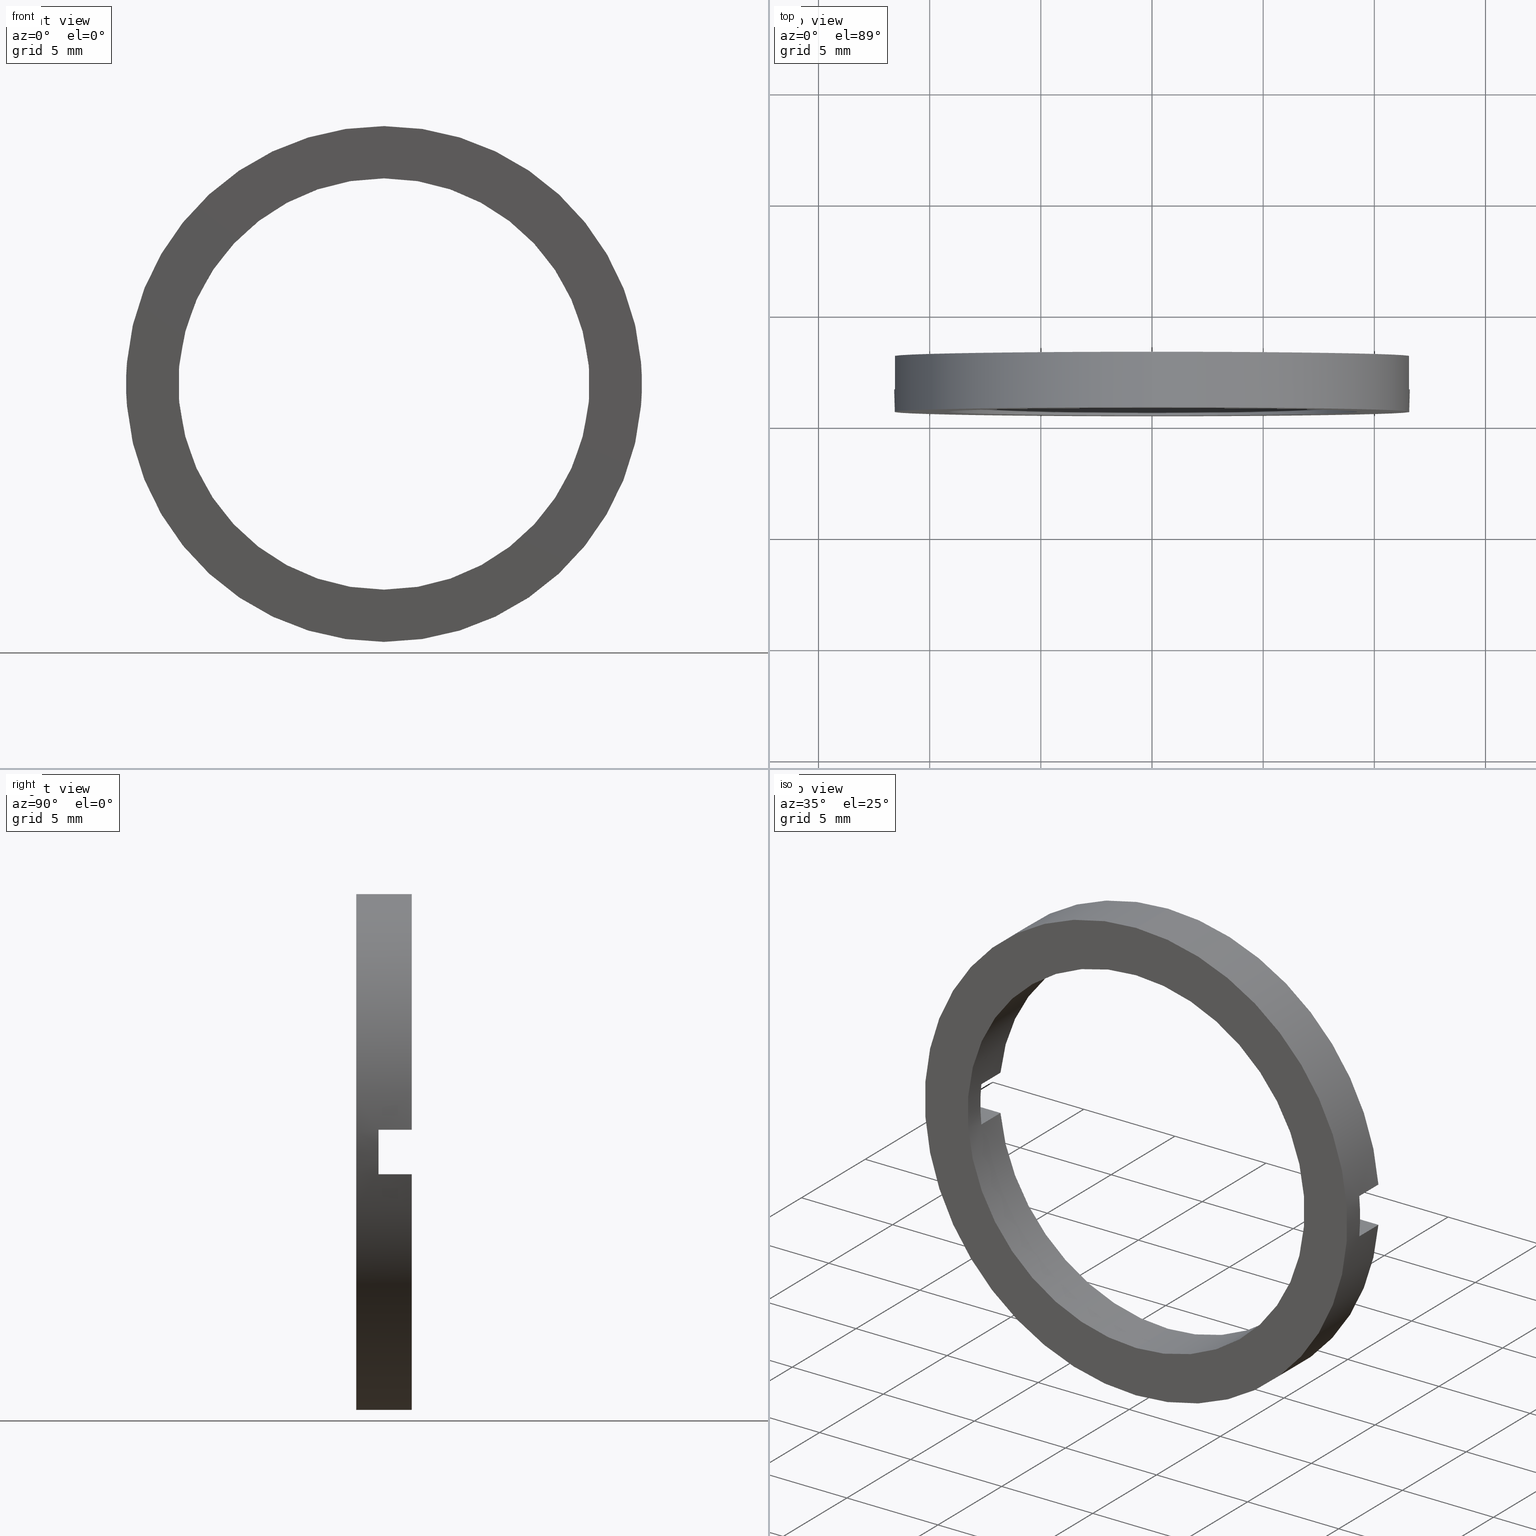
[diagram: canonical four-view strip — front | top / right | iso, engineering-drawing reading convention]
A machine part, canonical four-view strip (front | top / right | iso — engineering-drawing reading convention). The complete STEP part file that produces these views, byte-faithful:
ISO-10303-21;
HEADER;
FILE_DESCRIPTION (( 'STEP AP203' ),
    '1' );
FILE_NAME ('514010.STEP',
    '2019-09-25T08:48:17',
    ( '' ),
    ( '' ),
    'SwSTEP 2.0',
    'SolidWorks 2016',
    '' );
FILE_SCHEMA (( 'CONFIG_CONTROL_DESIGN' ));
ENDSEC;

DATA;
#1 = PERSON_AND_ORGANIZATION ( #562, #462 ) ;
#2 = DIRECTION ( 'NONE',  ( 0.0000000000000000000, 0.0000000000000000000, 1.000000000000000000 ) ) ;
#3 = APPROVAL ( #132, 'δָ��' ) ;
#4 = CC_DESIGN_PERSON_AND_ORGANIZATION_ASSIGNMENT ( #27, #531, ( #470 ) ) ;
#5 = ORIENTED_EDGE ( 'NONE', *, *, #64, .F. ) ;
#6 = CIRCLE ( 'NONE', #53, 11.60000000000000700 ) ;
#7 =( LENGTH_UNIT ( ) NAMED_UNIT ( * ) SI_UNIT ( .MILLI., .METRE. ) );
#8 = LOCAL_TIME ( 16, 48, 17.00000000000000000, #135 ) ;
#9 = ORIENTED_EDGE ( 'NONE', *, *, #452, .T. ) ;
#10 = VERTEX_POINT ( 'NONE', #241 ) ;
#11 = EDGE_CURVE ( 'NONE', #349, #76, #174, .T. ) ;
#12 = PRODUCT_DEFINITION ( 'δ֪', '', #269, #340 ) ;
#13 = CC_DESIGN_APPROVAL ( #551, ( #212 ) ) ;
#14 = CARTESIAN_POINT ( 'NONE',  ( -26.85254027261461800, -1.964249787179430900, -1.000000000000000000 ) ) ;
#15 = ORIENTED_EDGE ( 'NONE', *, *, #208, .F. ) ;
#16 = FACE_OUTER_BOUND ( 'NONE', #116, .T. ) ;
#17 = AXIS2_PLACEMENT_3D ( 'NONE', #125, #360, #390 ) ;
#18 = CALENDAR_DATE ( 2019, 25, 9 ) ;
#19 = PRODUCT ( '514010', '514010', '', ( #291 ) ) ;
#20 = ORIENTED_EDGE ( 'NONE', *, *, #467, .T. ) ;
#21 = ADVANCED_FACE ( 'NONE', ( #543 ), #325, .T. ) ;
#22 = DIRECTION ( 'NONE',  ( -0.0000000000000000000, -1.000000000000000000, -0.0000000000000000000 ) ) ;
#23 = CC_DESIGN_APPROVAL ( #395, ( #322 ) ) ;
#24 = DIRECTION ( 'NONE',  ( 1.000000000000000000, 0.0000000000000000000, 0.0000000000000000000 ) ) ;
#25 = CARTESIAN_POINT ( 'NONE',  ( 9.195787078874765500, -1.964249787179434000, 0.9999999999999995600 ) ) ;
#26 = APPROVAL_STATUS ( 'not_yet_approved' ) ;
#27 = PERSON_AND_ORGANIZATION ( #562, #462 ) ;
#28 = EDGE_CURVE ( 'NONE', #547, #362, #290, .T. ) ;
#29 = DIRECTION ( 'NONE',  ( 0.0000000000000000000, -1.000000000000000000, 0.0000000000000000000 ) ) ;
#30 = VECTOR ( 'NONE', #29, 1000.000000000000000 ) ;
#31 = CC_DESIGN_PERSON_AND_ORGANIZATION_ASSIGNMENT ( #485, #266, ( #12 ) ) ;
#32 = CC_DESIGN_SECURITY_CLASSIFICATION ( #322, ( #269 ) ) ;
#33 = DATE_TIME_ROLE ( 'creation_date' ) ;
#34 = DIRECTION ( 'NONE',  ( 0.0000000000000000000, 0.0000000000000000000, -1.000000000000000000 ) ) ;
#35 = PERSON_AND_ORGANIZATION ( #562, #462 ) ;
#36 = CARTESIAN_POINT ( 'NONE',  ( 9.250000000000007100, -4.464249787179429800, 0.0000000000000000000 ) ) ;
#37 = VERTEX_POINT ( 'NONE', #143 ) ;
#38 = LINE ( 'NONE', #139, #272 ) ;
#39 = CARTESIAN_POINT ( 'NONE',  ( 0.0000000000000000000, 56.26084262701361600, 9.250000000000007100 ) ) ;
#40 = EDGE_CURVE ( 'NONE', #486, #391, #38, .T. ) ;
#41 = DIRECTION ( 'NONE',  ( 1.000000000000000000, 0.0000000000000000000, 0.0000000000000000000 ) ) ;
#42 = LOCAL_TIME ( 16, 48, 17.00000000000000000, #273 ) ;
#43 = LINE ( 'NONE', #310, #268 ) ;
#44 = PERSON_AND_ORGANIZATION_ROLE ( 'design_owner' ) ;
#45 = DIRECTION ( 'NONE',  ( 0.0000000000000000000, -1.000000000000000000, 0.0000000000000000000 ) ) ;
#46 = COORDINATED_UNIVERSAL_TIME_OFFSET ( 8, 0, .AHEAD. ) ;
#47 = AXIS2_PLACEMENT_3D ( 'NONE', #119, #536, #586 ) ;
#48 = ORIENTED_EDGE ( 'NONE', *, *, #127, .T. ) ;
#49 = FACE_OUTER_BOUND ( 'NONE', #504, .T. ) ;
#50 = PERSON_AND_ORGANIZATION ( #562, #462 ) ;
#51 = DIRECTION ( 'NONE',  ( -0.0000000000000000000, 1.000000000000000000, -0.0000000000000000000 ) ) ;
#52 = EDGE_CURVE ( 'NONE', #486, #449, #394, .T. ) ;
#53 = AXIS2_PLACEMENT_3D ( 'NONE', #339, #335, #387 ) ;
#54 = EDGE_LOOP ( 'NONE', ( #497, #193, #197, #67, #401, #220 ) ) ;
#55 = CC_DESIGN_PERSON_AND_ORGANIZATION_ASSIGNMENT ( #50, #341, ( #470 ) ) ;
#56 = DIRECTION ( 'NONE',  ( 0.0000000000000000000, 1.000000000000000000, 0.0000000000000000000 ) ) ;
#57 = DIRECTION ( 'NONE',  ( 0.0000000000000000000, -0.0000000000000000000, 1.000000000000000000 ) ) ;
#58 = DATE_AND_TIME ( #182, #8 ) ;
#59 = ORIENTED_EDGE ( 'NONE', *, *, #555, .F. ) ;
#60 = CARTESIAN_POINT ( 'NONE',  ( 0.0000000000000000000, -1.964249787179434000, 0.0000000000000000000 ) ) ;
#61 = ADVANCED_FACE ( 'NONE', ( #49 ), #352, .F. ) ;
#62 = DIRECTION ( 'NONE',  ( -0.0000000000000000000, 1.000000000000000000, -0.0000000000000000000 ) ) ;
#63 = APPROVAL_DATE_TIME ( #301, #329 ) ;
#64 = EDGE_CURVE ( 'NONE', #449, #566, #282, .T. ) ;
#65 = DATE_AND_TIME ( #502, #42 ) ;
#66 = CARTESIAN_POINT ( 'NONE',  ( 9.195787078874767300, 56.26084262701361600, 1.000000000000000000 ) ) ;
#67 = ORIENTED_EDGE ( 'NONE', *, *, #87, .F. ) ;
#68 = ORIENTED_EDGE ( 'NONE', *, *, #115, .F. ) ;
#69 = VECTOR ( 'NONE', #243, 1000.000000000000000 ) ;
#70 = CARTESIAN_POINT ( 'NONE',  ( 0.0000000000000000000, -4.464249787179428900, 11.60000000000000700 ) ) ;
#71 = DIRECTION ( 'NONE',  ( -0.0000000000000000000, 1.000000000000000000, -0.0000000000000000000 ) ) ;
#72 = ORIENTED_EDGE ( 'NONE', *, *, #111, .F. ) ;
#73 = APPLICATION_CONTEXT ( 'configuration controlled 3d designs of mechanical parts and assemblies' ) ;
#74 = CARTESIAN_POINT ( 'NONE',  ( -26.85254027261461800, -3.464249787179431100, 1.000000000000000000 ) ) ;
#75 = CALENDAR_DATE ( 2019, 25, 9 ) ;
#76 = VERTEX_POINT ( 'NONE', #253 ) ;
#77 = DIRECTION ( 'NONE',  ( 0.0000000000000000000, 0.0000000000000000000, 1.000000000000000000 ) ) ;
#78 = LINE ( 'NONE', #39, #306 ) ;
#79 = CARTESIAN_POINT ( 'NONE',  ( -11.55681617055494400, -1.964249787179430900, 1.000000000000000000 ) ) ;
#80 = CARTESIAN_POINT ( 'NONE',  ( 0.0000000000000000000, -4.464249787179428900, 0.0000000000000000000 ) ) ;
#81 = PERSON_AND_ORGANIZATION ( #562, #462 ) ;
#82 = CARTESIAN_POINT ( 'NONE',  ( -26.85254027261461800, -1.964249787179430900, -1.000000000000000000 ) ) ;
#83 = ORIENTED_EDGE ( 'NONE', *, *, #567, .T. ) ;
#84 = VERTEX_POINT ( 'NONE', #423 ) ;
#85 = CYLINDRICAL_SURFACE ( 'NONE', #548, 11.60000000000000700 ) ;
#86 =( NAMED_UNIT ( * ) PLANE_ANGLE_UNIT ( ) SI_UNIT ( $, .RADIAN. ) );
#87 = EDGE_CURVE ( 'NONE', #84, #271, #447, .T. ) ;
#88 = COORDINATED_UNIVERSAL_TIME_OFFSET ( 8, 0, .AHEAD. ) ;
#89 = ORIENTED_EDGE ( 'NONE', *, *, #492, .T. ) ;
#90 = VECTOR ( 'NONE', #24, 1000.000000000000000 ) ;
#91 = DESIGN_CONTEXT ( 'detailed design', #73, 'design' ) ;
#92 = ORIENTED_EDGE ( 'NONE', *, *, #505, .T. ) ;
#93 = FACE_OUTER_BOUND ( 'NONE', #393, .T. ) ;
#94 = EDGE_CURVE ( 'NONE', #349, #375, #194, .T. ) ;
#95 = APPROVAL ( #573, 'δָ��' ) ;
#96 = APPROVAL_PERSON_ORGANIZATION ( #188, #95, #523 ) ;
#97 = ORIENTED_EDGE ( 'NONE', *, *, #127, .F. ) ;
#98 = LINE ( 'NONE', #576, #215 ) ;
#99 = ADVANCED_FACE ( 'NONE', ( #324 ), #199, .T. ) ;
#100 = CC_DESIGN_APPROVAL ( #329, ( #269 ) ) ;
#101 = APPROVAL_DATE_TIME ( #368, #395 ) ;
#102 = DIRECTION ( 'NONE',  ( 0.0000000000000000000, 0.0000000000000000000, 1.000000000000000000 ) ) ;
#103 = VERTEX_POINT ( 'NONE', #257 ) ;
#104 = ORIENTED_EDGE ( 'NONE', *, *, #370, .T. ) ;
#105 = CARTESIAN_POINT ( 'NONE',  ( 9.195787078874767300, 56.26084262701361600, -1.000000000000000000 ) ) ;
#106 = CIRCLE ( 'NONE', #407, 9.250000000000007100 ) ;
#107 = ADVANCED_FACE ( 'NONE', ( #571 ), #206, .F. ) ;
#108 = DIRECTION ( 'NONE',  ( 1.000000000000000000, 0.0000000000000000000, 0.0000000000000000000 ) ) ;
#109 = DIRECTION ( 'NONE',  ( -0.0000000000000000000, 1.000000000000000000, -0.0000000000000000000 ) ) ;
#110 = DIRECTION ( 'NONE',  ( -0.0000000000000000000, 1.000000000000000000, -0.0000000000000000000 ) ) ;
#111 = EDGE_CURVE ( 'NONE', #349, #37, #365, .T. ) ;
#112 = COORDINATED_UNIVERSAL_TIME_OFFSET ( 8, 0, .AHEAD. ) ;
#113 = DIRECTION ( 'NONE',  ( -0.0000000000000000000, 1.000000000000000000, -0.0000000000000000000 ) ) ;
#114 = EDGE_LOOP ( 'NONE', ( #405, #15 ) ) ;
#115 = EDGE_CURVE ( 'NONE', #10, #37, #6, .T. ) ;
#116 = EDGE_LOOP ( 'NONE', ( #336, #130, #187, #297 ) ) ;
#117 = CIRCLE ( 'NONE', #572, 11.60000000000000700 ) ;
#118 = CARTESIAN_POINT ( 'NONE',  ( 0.0000000000000000000, -1.964249787179434000, 0.0000000000000000000 ) ) ;
#119 = CARTESIAN_POINT ( 'NONE',  ( 0.0000000000000000000, -1.964249787179434000, 0.0000000000000000000 ) ) ;
#120 = DIRECTION ( 'NONE',  ( 0.0000000000000000000, -0.0000000000000000000, -1.000000000000000000 ) ) ;
#121 = PLANE ( 'NONE',  #275 ) ;
#122 = PLANE ( 'NONE',  #129 ) ;
#123 = CALENDAR_DATE ( 2019, 25, 9 ) ;
#124 = ORIENTED_EDGE ( 'NONE', *, *, #208, .T. ) ;
#125 = CARTESIAN_POINT ( 'NONE',  ( 0.0000000000000000000, -1.964249787179434000, 0.0000000000000000000 ) ) ;
#126 = DIRECTION ( 'NONE',  ( 0.0000000000000000000, 0.0000000000000000000, -1.000000000000000000 ) ) ;
#127 = EDGE_CURVE ( 'NONE', #168, #375, #98, .T. ) ;
#128 =( NAMED_UNIT ( * ) SI_UNIT ( $, .STERADIAN. ) SOLID_ANGLE_UNIT ( ) );
#129 = AXIS2_PLACEMENT_3D ( 'NONE', #36, #309, #77 ) ;
#130 = ORIENTED_EDGE ( 'NONE', *, *, #142, .F. ) ;
#131 = LINE ( 'NONE', #398, #507 ) ;
#132 = APPROVAL_STATUS ( 'not_yet_approved' ) ;
#133 = APPROVAL_STATUS ( 'not_yet_approved' ) ;
#134 = AXIS2_PLACEMENT_3D ( 'NONE', #296, #113, #198 ) ;
#135 = COORDINATED_UNIVERSAL_TIME_OFFSET ( 8, 0, .AHEAD. ) ;
#136 = ORIENTED_EDGE ( 'NONE', *, *, #250, .F. ) ;
#137 = CC_DESIGN_DATE_AND_TIME_ASSIGNMENT ( #410, #307, ( #373 ) ) ;
#138 = APPROVAL_DATE_TIME ( #383, #95 ) ;
#139 = CARTESIAN_POINT ( 'NONE',  ( -9.195787078874767300, 56.26084262701361600, 1.000000000000000000 ) ) ;
#140 = FACE_OUTER_BOUND ( 'NONE', #550, .T. ) ;
#141 = EDGE_CURVE ( 'NONE', #177, #10, #221, .T. ) ;
#142 = EDGE_CURVE ( 'NONE', #271, #177, #399, .T. ) ;
#143 = CARTESIAN_POINT ( 'NONE',  ( 11.55681617055493900, -3.464249787179428400, -0.9999999999999995600 ) ) ;
#144 = LOCAL_TIME ( 16, 48, 17.00000000000000000, #88 ) ;
#145 = ORIENTED_EDGE ( 'NONE', *, *, #11, .T. ) ;
#146 = VECTOR ( 'NONE', #346, 1000.000000000000000 ) ;
#147 = CARTESIAN_POINT ( 'NONE',  ( 0.0000000000000000000, -3.464249787179428400, 0.0000000000000000000 ) ) ;
#148 = ADVANCED_FACE ( 'NONE', ( #255 ), #216, .F. ) ;
#149 = CARTESIAN_POINT ( 'NONE',  ( -11.55681617055494400, -1.964249787179430900, -1.000000000000000000 ) ) ;
#150 = CARTESIAN_POINT ( 'NONE',  ( -9.195787078874765500, -1.964249787179434000, -0.9999999999999995600 ) ) ;
#151 = APPROVAL_ROLE ( '' ) ;
#152 = EDGE_CURVE ( 'NONE', #391, #84, #106, .T. ) ;
#153 = DIRECTION ( 'NONE',  ( 0.0000000000000000000, 0.0000000000000000000, 1.000000000000000000 ) ) ;
#154 = COORDINATED_UNIVERSAL_TIME_OFFSET ( 8, 0, .AHEAD. ) ;
#155 = AXIS2_PLACEMENT_3D ( 'NONE', #196, #56, #57 ) ;
#156 = APPLICATION_CONTEXT ( 'configuration controlled 3d designs of mechanical parts and assemblies' ) ;
#157 = DIRECTION ( 'NONE',  ( -0.0000000000000000000, -1.000000000000000000, -0.0000000000000000000 ) ) ;
#158 = CARTESIAN_POINT ( 'NONE',  ( 1.132798289211302500E-015, -1.964249787179434000, -9.250000000000007100 ) ) ;
#159 = CIRCLE ( 'NONE', #47, 9.250000000000007100 ) ;
#160 = CARTESIAN_POINT ( 'NONE',  ( 0.0000000000000000000, -1.964249787179434000, 0.0000000000000000000 ) ) ;
#161 = DIRECTION ( 'NONE',  ( -1.000000000000000000, 0.0000000000000000000, -0.0000000000000000000 ) ) ;
#162 = PERSON_AND_ORGANIZATION_ROLE ( 'classification_officer' ) ;
#163 = CARTESIAN_POINT ( 'NONE',  ( 9.195787078874765500, -3.464249787179428400, -0.9999999999999995600 ) ) ;
#164 = SECURITY_CLASSIFICATION_LEVEL ( 'unclassified' ) ;
#165 = APPROVAL_DATE_TIME ( #327, #3 ) ;
#166 = CARTESIAN_POINT ( 'NONE',  ( 1.132798289211302500E-015, 56.26084262701361600, -9.250000000000007100 ) ) ;
#167 = DIRECTION ( 'NONE',  ( -5.329070518200750600E-015, 0.0000000000000000000, 1.000000000000000000 ) ) ;
#168 = VERTEX_POINT ( 'NONE', #521 ) ;
#169 = CC_DESIGN_PERSON_AND_ORGANIZATION_ASSIGNMENT ( #35, #432, ( #269 ) ) ;
#170 = CYLINDRICAL_SURFACE ( 'NONE', #372, 9.250000000000007100 ) ;
#171 = DIRECTION ( 'NONE',  ( -0.0000000000000000000, 0.0000000000000000000, 1.000000000000000000 ) ) ;
#172 = APPLICATION_CONTEXT ( 'configuration controlled 3d designs of mechanical parts and assemblies' ) ;
#173 = COORDINATED_UNIVERSAL_TIME_OFFSET ( 8, 0, .AHEAD. ) ;
#174 = LINE ( 'NONE', #14, #516 ) ;
#175 = CARTESIAN_POINT ( 'NONE',  ( 0.0000000000000000000, 56.26084262701361600, 0.0000000000000000000 ) ) ;
#176 = FACE_BOUND ( 'NONE', #511, .T. ) ;
#177 = VERTEX_POINT ( 'NONE', #248 ) ;
#178 = EDGE_CURVE ( 'NONE', #184, #103, #587, .T. ) ;
#179 = ORIENTED_EDGE ( 'NONE', *, *, #366, .T. ) ;
#180 = APPLICATION_PROTOCOL_DEFINITION ( 'international standard', 'config_control_design', 1994, #172 ) ;
#181 = AXIS2_PLACEMENT_3D ( 'NONE', #80, #308, #258 ) ;
#182 = CALENDAR_DATE ( 2019, 25, 9 ) ;
#183 = ORIENTED_EDGE ( 'NONE', *, *, #195, .F. ) ;
#184 = VERTEX_POINT ( 'NONE', #302 ) ;
#185 = LINE ( 'NONE', #287, #443 ) ;
#186 = ORIENTED_EDGE ( 'NONE', *, *, #467, .F. ) ;
#187 = ORIENTED_EDGE ( 'NONE', *, *, #314, .T. ) ;
#188 = PERSON_AND_ORGANIZATION ( #562, #462 ) ;
#189 = VERTEX_POINT ( 'NONE', #163 ) ;
#190 = EDGE_CURVE ( 'NONE', #103, #234, #451, .T. ) ;
#191 = CIRCLE ( 'NONE', #252, 11.60000000000000700 ) ;
#192 = PERSON_AND_ORGANIZATION ( #562, #462 ) ;
#193 = ORIENTED_EDGE ( 'NONE', *, *, #499, .T. ) ;
#194 = CIRCLE ( 'NONE', #389, 11.60000000000000700 ) ;
#195 = EDGE_CURVE ( 'NONE', #375, #254, #191, .T. ) ;
#196 = CARTESIAN_POINT ( 'NONE',  ( 0.0000000000000000000, -3.464249787179431100, 0.0000000000000000000 ) ) ;
#197 = ORIENTED_EDGE ( 'NONE', *, *, #314, .F. ) ;
#198 = DIRECTION ( 'NONE',  ( 0.0000000000000000000, 0.0000000000000000000, 1.000000000000000000 ) ) ;
#199 = PLANE ( 'NONE',  #400 ) ;
#200 = CARTESIAN_POINT ( 'NONE',  ( -9.195787078874765500, -1.964249787179434000, 0.9999999999999995600 ) ) ;
#201 = EDGE_LOOP ( 'NONE', ( #92, #48, #281, #409, #68, #179, #579, #478 ) ) ;
#202 = VECTOR ( 'NONE', #108, 1000.000000000000000 ) ;
#203 = PRODUCT ( '514010', '514010', '', ( #444 ) ) ;
#204 = DIRECTION ( 'NONE',  ( 0.0000000000000000000, 0.0000000000000000000, 1.000000000000000000 ) ) ;
#205 = CARTESIAN_POINT ( 'NONE',  ( -26.85254027261461800, -3.464249787179431100, -1.000000000000000000 ) ) ;
#206 = PLANE ( 'NONE',  #448 ) ;
#207 = CARTESIAN_POINT ( 'NONE',  ( 11.55681617055494000, 56.26084262701361600, 1.000000000000000000 ) ) ;
#208 = EDGE_CURVE ( 'NONE', #168, #305, #117, .T. ) ;
#209 = DIRECTION ( 'NONE',  ( 0.0000000000000000000, 0.0000000000000000000, 1.000000000000000000 ) ) ;
#210 = CARTESIAN_POINT ( 'NONE',  ( -11.55681617055493900, -3.464249787179428400, -0.9999999999999995600 ) ) ;
#211 = CC_DESIGN_DATE_AND_TIME_ASSIGNMENT ( #438, #495, ( #12 ) ) ;
#212 = PRODUCT_DEFINITION ( 'δ֪', '', #470, #91 ) ;
#213 = EDGE_LOOP ( 'NONE', ( #5, #585, #351, #328 ) ) ;
#214 = DIRECTION ( 'NONE',  ( -0.0000000000000000000, 1.000000000000000000, -0.0000000000000000000 ) ) ;
#215 = VECTOR ( 'NONE', #569, 1000.000000000000000 ) ;
#216 = PLANE ( 'NONE',  #261 ) ;
#217 = DIRECTION ( 'NONE',  ( 1.000000000000000000, 0.0000000000000000000, 0.0000000000000000000 ) ) ;
#218 = CARTESIAN_POINT ( 'NONE',  ( -26.85254027261461800, -3.464249787179431100, -1.000000000000000000 ) ) ;
#219 = APPROVAL_DATE_TIME ( #496, #551 ) ;
#220 = ORIENTED_EDGE ( 'NONE', *, *, #232, .F. ) ;
#221 = LINE ( 'NONE', #74, #294 ) ;
#222 = APPLICATION_CONTEXT ( 'configuration controlled 3d designs of mechanical parts and assemblies' ) ;
#223 = EDGE_CURVE ( 'NONE', #305, #362, #384, .T. ) ;
#224 = DIRECTION ( 'NONE',  ( 0.0000000000000000000, 0.0000000000000000000, 1.000000000000000000 ) ) ;
#225 = AXIS2_PLACEMENT_3D ( 'NONE', #284, #22, #167 ) ;
#226 = CC_DESIGN_APPROVAL ( #95, ( #470 ) ) ;
#227 = DIRECTION ( 'NONE',  ( 0.0000000000000000000, 0.0000000000000000000, 1.000000000000000000 ) ) ;
#228 = SHAPE_DEFINITION_REPRESENTATION ( #265, #491 ) ;
#229 = ORIENTED_EDGE ( 'NONE', *, *, #115, .T. ) ;
#230 = ORIENTED_EDGE ( 'NONE', *, *, #520, .F. ) ;
#231 = LINE ( 'NONE', #427, #90 ) ;
#232 = EDGE_CURVE ( 'NONE', #547, #391, #458, .T. ) ;
#233 = PERSON_AND_ORGANIZATION ( #562, #462 ) ;
#234 = VERTEX_POINT ( 'NONE', #158 ) ;
#235 = VECTOR ( 'NONE', #264, 1000.000000000000000 ) ;
#236 = CARTESIAN_POINT ( 'NONE',  ( 0.0000000000000000000, -1.964249787179434000, 0.0000000000000000000 ) ) ;
#237 = EDGE_LOOP ( 'NONE', ( #20, #545, #430, #321 ) ) ;
#238 = VECTOR ( 'NONE', #426, 1000.000000000000000 ) ;
#239 = AXIS2_PLACEMENT_3D ( 'NONE', #526, #126, #161 ) ;
#240 = APPROVAL ( #26, 'δָ��' ) ;
#241 = CARTESIAN_POINT ( 'NONE',  ( 11.55681617055493900, -3.464249787179428400, 0.9999999999999995600 ) ) ;
#242 = LOCAL_TIME ( 16, 48, 17.00000000000000000, #112 ) ;
#243 = DIRECTION ( 'NONE',  ( -0.0000000000000000000, 1.000000000000000000, -0.0000000000000000000 ) ) ;
#244 = ORIENTED_EDGE ( 'NONE', *, *, #11, .F. ) ;
#245 = DIRECTION ( 'NONE',  ( 0.0000000000000000000, -0.0000000000000000000, -1.000000000000000000 ) ) ;
#246 = DIRECTION ( 'NONE',  ( 0.0000000000000000000, 0.0000000000000000000, 1.000000000000000000 ) ) ;
#247 = ADVANCED_FACE ( 'NONE', ( #479 ), #580, .T. ) ;
#248 = CARTESIAN_POINT ( 'NONE',  ( 9.195787078874765500, -3.464249787179428400, 0.9999999999999995600 ) ) ;
#249 = DIRECTION ( 'NONE',  ( 0.0000000000000000000, 0.0000000000000000000, 1.000000000000000000 ) ) ;
#250 = EDGE_CURVE ( 'NONE', #37, #189, #554, .T. ) ;
#251 = LOCAL_TIME ( 16, 48, 17.00000000000000000, #173 ) ;
#252 = AXIS2_PLACEMENT_3D ( 'NONE', #60, #476, #246 ) ;
#253 = CARTESIAN_POINT ( 'NONE',  ( 9.195787078874765500, -1.964249787179434000, -0.9999999999999995600 ) ) ;
#254 = VERTEX_POINT ( 'NONE', #149 ) ;
#255 = FACE_OUTER_BOUND ( 'NONE', #355, .T. ) ;
#256 = APPROVAL_ROLE ( '' ) ;
#257 = CARTESIAN_POINT ( 'NONE',  ( 1.132798289211302500E-015, -4.464249787179428900, -9.250000000000007100 ) ) ;
#258 = DIRECTION ( 'NONE',  ( 0.0000000000000000000, 0.0000000000000000000, 1.000000000000000000 ) ) ;
#259 = PERSON_AND_ORGANIZATION_ROLE ( 'classification_officer' ) ;
#260 = DIRECTION ( 'NONE',  ( -0.0000000000000000000, 1.000000000000000000, -0.0000000000000000000 ) ) ;
#261 = AXIS2_PLACEMENT_3D ( 'NONE', #532, #480, #120 ) ;
#262 = VERTEX_POINT ( 'NONE', #465 ) ;
#263 = CARTESIAN_POINT ( 'NONE',  ( -26.85254027261461800, -3.464249787179431100, 1.000000000000000000 ) ) ;
#264 = DIRECTION ( 'NONE',  ( -1.000000000000000000, -0.0000000000000000000, -0.0000000000000000000 ) ) ;
#265 = PRODUCT_DEFINITION_SHAPE ( 'NONE', 'NONE',  #212 ) ;
#266 = PERSON_AND_ORGANIZATION_ROLE ( 'creator' ) ;
#267 = CALENDAR_DATE ( 2019, 25, 9 ) ;
#268 = VECTOR ( 'NONE', #429, 1000.000000000000000 ) ;
#269 = PRODUCT_DEFINITION_FORMATION_WITH_SPECIFIED_SOURCE ( '�κ�', '', #203, .NOT_KNOWN. ) ;
#270 = LOCAL_TIME ( 16, 48, 17.00000000000000000, #46 ) ;
#271 = VERTEX_POINT ( 'NONE', #25 ) ;
#272 = VECTOR ( 'NONE', #71, 1000.000000000000000 ) ;
#273 = COORDINATED_UNIVERSAL_TIME_OFFSET ( 8, 0, .AHEAD. ) ;
#274 = EDGE_CURVE ( 'NONE', #76, #234, #313, .T. ) ;
#275 = AXIS2_PLACEMENT_3D ( 'NONE', #263, #171, #437 ) ;
#276 = DIRECTION ( 'NONE',  ( 0.0000000000000000000, 0.0000000000000000000, 1.000000000000000000 ) ) ;
#277 = VECTOR ( 'NONE', #517, 1000.000000000000000 ) ;
#278 = ADVANCED_FACE ( 'NONE', ( #332 ), #85, .T. ) ;
#279 = PERSON_AND_ORGANIZATION ( #562, #462 ) ;
#280 = APPROVAL_ROLE ( '' ) ;
#281 = ORIENTED_EDGE ( 'NONE', *, *, #94, .F. ) ;
#282 = LINE ( 'NONE', #295, #146 ) ;
#283 =( GEOMETRIC_REPRESENTATION_CONTEXT ( 3 ) GLOBAL_UNCERTAINTY_ASSIGNED_CONTEXT ( ( #318 ) ) GLOBAL_UNIT_ASSIGNED_CONTEXT ( ( #7, #86, #128 ) ) REPRESENTATION_CONTEXT ( 'NONE', 'WORKASPACE' ) );
#284 = CARTESIAN_POINT ( 'NONE',  ( 0.0000000000000000000, -3.464249787179428400, 0.0000000000000000000 ) ) ;
#285 = ORIENTED_EDGE ( 'NONE', *, *, #538, .F. ) ;
#286 = DIRECTION ( 'NONE',  ( 1.000000000000000000, 0.0000000000000000000, 0.0000000000000000000 ) ) ;
#287 = CARTESIAN_POINT ( 'NONE',  ( -11.55681617055494000, 56.26084262701361600, 1.000000000000000000 ) ) ;
#288 = PERSON_AND_ORGANIZATION ( #562, #462 ) ;
#289 = DIRECTION ( 'NONE',  ( -1.000000000000000000, -0.0000000000000000000, -0.0000000000000000000 ) ) ;
#290 = CIRCLE ( 'NONE', #411, 11.60000000000000700 ) ;
#291 = MECHANICAL_CONTEXT ( 'NONE', #156, 'mechanical' ) ;
#292 = DIRECTION ( 'NONE',  ( 0.0000000000000000000, -1.000000000000000000, 0.0000000000000000000 ) ) ;
#293 = DIRECTION ( 'NONE',  ( -0.0000000000000000000, 1.000000000000000000, -0.0000000000000000000 ) ) ;
#294 = VECTOR ( 'NONE', #286, 1000.000000000000000 ) ;
#295 = CARTESIAN_POINT ( 'NONE',  ( -26.85254027261461800, -3.464249787179431100, -1.000000000000000000 ) ) ;
#296 = CARTESIAN_POINT ( 'NONE',  ( 0.0000000000000000000, -4.464249787179428900, 0.0000000000000000000 ) ) ;
#297 = ORIENTED_EDGE ( 'NONE', *, *, #366, .F. ) ;
#298 = CARTESIAN_POINT ( 'NONE',  ( 9.250000000000007100, -1.964249787179430900, 0.0000000000000000000 ) ) ;
#299 = PLANE ( 'NONE',  #239 ) ;
#300 = AXIS2_PLACEMENT_3D ( 'NONE', #147, #157, #153 ) ;
#301 = DATE_AND_TIME ( #315, #242 ) ;
#302 = CARTESIAN_POINT ( 'NONE',  ( 0.0000000000000000000, -4.464249787179428900, 9.250000000000007100 ) ) ;
#303 = DIRECTION ( 'NONE',  ( 1.000000000000000000, 0.0000000000000000000, 0.0000000000000000000 ) ) ;
#304 = ORIENTED_EDGE ( 'NONE', *, *, #492, .F. ) ;
#305 = VERTEX_POINT ( 'NONE', #70 ) ;
#306 = VECTOR ( 'NONE', #260, 1000.000000000000000 ) ;
#307 = DATE_TIME_ROLE ( 'classification_date' ) ;
#308 = DIRECTION ( 'NONE',  ( -0.0000000000000000000, 1.000000000000000000, -0.0000000000000000000 ) ) ;
#309 = DIRECTION ( 'NONE',  ( -0.0000000000000000000, 1.000000000000000000, 0.0000000000000000000 ) ) ;
#310 = CARTESIAN_POINT ( 'NONE',  ( -11.55681617055494000, 56.26084262701361600, -1.000000000000000000 ) ) ;
#311 = DATE_AND_TIME ( #420, #552 ) ;
#312 = ORIENTED_EDGE ( 'NONE', *, *, #87, .T. ) ;
#313 = CIRCLE ( 'NONE', #381, 9.250000000000007100 ) ;
#314 = EDGE_CURVE ( 'NONE', #271, #262, #231, .T. ) ;
#315 = CALENDAR_DATE ( 2019, 25, 9 ) ;
#316 = ORIENTED_EDGE ( 'NONE', *, *, #152, .T. ) ;
#317 = VECTOR ( 'NONE', #217, 1000.000000000000000 ) ;
#318 = UNCERTAINTY_MEASURE_WITH_UNIT (LENGTH_MEASURE( 1.000000000000000100E-005 ), #7, 'distance_accuracy_value', 'NONE');
#319 = AXIS2_PLACEMENT_3D ( 'NONE', #445, #227, #41 ) ;
#320 = APPROVAL_PERSON_ORGANIZATION ( #403, #551, #474 ) ;
#321 = ORIENTED_EDGE ( 'NONE', *, *, #64, .T. ) ;
#322 = SECURITY_CLASSIFICATION ( '', '', #164 ) ;
#323 = PRODUCT_RELATED_PRODUCT_CATEGORY ( 'detail', '', ( #203 ) ) ;
#324 = FACE_OUTER_BOUND ( 'NONE', #422, .T. ) ;
#325 = PLANE ( 'NONE',  #155 ) ;
#326 = DIRECTION ( 'NONE',  ( -0.0000000000000000000, 1.000000000000000000, -0.0000000000000000000 ) ) ;
#327 = DATE_AND_TIME ( #18, #376 ) ;
#328 = ORIENTED_EDGE ( 'NONE', *, *, #567, .F. ) ;
#329 = APPROVAL ( #133, 'δָ��' ) ;
#330 = CC_DESIGN_PERSON_AND_ORGANIZATION_ASSIGNMENT ( #490, #162, ( #373 ) ) ;
#331 = DIRECTION ( 'NONE',  ( -1.000000000000000000, -0.0000000000000000000, -0.0000000000000000000 ) ) ;
#332 = FACE_OUTER_BOUND ( 'NONE', #487, .T. ) ;
#333 = CARTESIAN_POINT ( 'NONE',  ( 1.420590287010930300E-015, -1.964249787179434000, -11.60000000000000700 ) ) ;
#334 = PERSON_AND_ORGANIZATION ( #562, #462 ) ;
#335 = DIRECTION ( 'NONE',  ( 0.0000000000000000000, 1.000000000000000000, 0.0000000000000000000 ) ) ;
#336 = ORIENTED_EDGE ( 'NONE', *, *, #141, .F. ) ;
#337 = ORIENTED_EDGE ( 'NONE', *, *, #232, .T. ) ;
#338 = LINE ( 'NONE', #207, #69 ) ;
#339 = CARTESIAN_POINT ( 'NONE',  ( 0.0000000000000000000, -3.464249787179428400, 0.0000000000000000000 ) ) ;
#340 = DESIGN_CONTEXT ( 'detailed design', #222, 'design' ) ;
#341 = PERSON_AND_ORGANIZATION_ROLE ( 'creator' ) ;
#342 = EDGE_CURVE ( 'NONE', #103, #184, #544, .T. ) ;
#343 = CARTESIAN_POINT ( 'NONE',  ( 0.0000000000000000000, 56.26084262701361600, 0.0000000000000000000 ) ) ;
#344 = AXIS2_PLACEMENT_3D ( 'NONE', #160, #109, #204 ) ;
#345 = APPLICATION_PROTOCOL_DEFINITION ( 'international standard', 'config_control_design', 1994, #156 ) ;
#346 = DIRECTION ( 'NONE',  ( -1.000000000000000000, -0.0000000000000000000, -0.0000000000000000000 ) ) ;
#347 = DIRECTION ( 'NONE',  ( -0.0000000000000000000, 1.000000000000000000, -0.0000000000000000000 ) ) ;
#348 = PERSON_AND_ORGANIZATION ( #562, #462 ) ;
#349 = VERTEX_POINT ( 'NONE', #382 ) ;
#350 = SECURITY_CLASSIFICATION_LEVEL ( 'unclassified' ) ;
#351 = ORIENTED_EDGE ( 'NONE', *, *, #520, .T. ) ;
#352 = CYLINDRICAL_SURFACE ( 'NONE', #416, 9.250000000000007100 ) ;
#353 = DIRECTION ( 'NONE',  ( 0.0000000000000000000, 0.0000000000000000000, 1.000000000000000000 ) ) ;
#354 = CARTESIAN_POINT ( 'NONE',  ( -9.195787078874765500, -3.464249787179428400, 0.9999999999999995600 ) ) ;
#355 = EDGE_LOOP ( 'NONE', ( #506, #413, #230, #59, #578, #244 ) ) ;
#356 = CC_DESIGN_PERSON_AND_ORGANIZATION_ASSIGNMENT ( #192, #522, ( #269 ) ) ;
#357 = PLANE ( 'NONE',  #441 ) ;
#358 = VERTEX_POINT ( 'NONE', #508 ) ;
#359 = CIRCLE ( 'NONE', #181, 11.60000000000000700 ) ;
#360 = DIRECTION ( 'NONE',  ( -0.0000000000000000000, 1.000000000000000000, -0.0000000000000000000 ) ) ;
#361 = CC_DESIGN_PERSON_AND_ORGANIZATION_ASSIGNMENT ( #1, #259, ( #322 ) ) ;
#362 = VERTEX_POINT ( 'NONE', #472 ) ;
#363 = CALENDAR_DATE ( 2019, 25, 9 ) ;
#364 = EDGE_LOOP ( 'NONE', ( #537, #535, #89, #312, #457, #369, #9, #404 ) ) ;
#365 = LINE ( 'NONE', #564, #238 ) ;
#366 = EDGE_CURVE ( 'NONE', #10, #262, #338, .T. ) ;
#367 = CC_DESIGN_DATE_AND_TIME_ASSIGNMENT ( #58, #392, ( #322 ) ) ;
#368 = DATE_AND_TIME ( #123, #477 ) ;
#369 = ORIENTED_EDGE ( 'NONE', *, *, #425, .F. ) ;
#370 = EDGE_CURVE ( 'NONE', #547, #358, #185, .T. ) ;
#371 = LOCAL_TIME ( 16, 48, 17.00000000000000000, #154 ) ;
#372 = AXIS2_PLACEMENT_3D ( 'NONE', #175, #51, #2 ) ;
#373 = SECURITY_CLASSIFICATION ( '', '', #350 ) ;
#374 = FACE_OUTER_BOUND ( 'NONE', #364, .T. ) ;
#375 = VERTEX_POINT ( 'NONE', #333 ) ;
#376 = LOCAL_TIME ( 16, 48, 17.00000000000000000, #565 ) ;
#377 = ORIENTED_EDGE ( 'NONE', *, *, #589, .T. ) ;
#378 = CARTESIAN_POINT ( 'NONE',  ( 0.0000000000000000000, -4.464249787179428900, 0.0000000000000000000 ) ) ;
#379 = DIRECTION ( 'NONE',  ( -0.0000000000000000000, 1.000000000000000000, -0.0000000000000000000 ) ) ;
#380 = DIRECTION ( 'NONE',  ( 0.0000000000000000000, 0.0000000000000000000, 1.000000000000000000 ) ) ;
#381 = AXIS2_PLACEMENT_3D ( 'NONE', #575, #62, #380 ) ;
#382 = CARTESIAN_POINT ( 'NONE',  ( 11.55681617055492800, -1.964249787179430900, -1.000000000000000000 ) ) ;
#383 = DATE_AND_TIME ( #397, #371 ) ;
#384 = LINE ( 'NONE', #509, #277 ) ;
#385 = DIRECTION ( 'NONE',  ( -0.0000000000000000000, 1.000000000000000000, -0.0000000000000000000 ) ) ;
#386 = APPROVAL_STATUS ( 'not_yet_approved' ) ;
#387 = DIRECTION ( 'NONE',  ( 0.0000000000000000000, 0.0000000000000000000, 1.000000000000000000 ) ) ;
#388 = CARTESIAN_POINT ( 'NONE',  ( -26.85254027261461800, -3.464249787179431100, 1.000000000000000000 ) ) ;
#389 = AXIS2_PLACEMENT_3D ( 'NONE', #574, #379, #463 ) ;
#390 = DIRECTION ( 'NONE',  ( 0.0000000000000000000, 0.0000000000000000000, 1.000000000000000000 ) ) ;
#391 = VERTEX_POINT ( 'NONE', #200 ) ;
#392 = DATE_TIME_ROLE ( 'classification_date' ) ;
#393 = EDGE_LOOP ( 'NONE', ( #337, #446, #285, #530 ) ) ;
#394 = CIRCLE ( 'NONE', #300, 9.250000000000007100 ) ;
#395 = APPROVAL ( #386, 'δָ��' ) ;
#396 = CARTESIAN_POINT ( 'NONE',  ( 0.0000000000000000000, -3.464249787179428400, 0.0000000000000000000 ) ) ;
#397 = CALENDAR_DATE ( 2019, 25, 9 ) ;
#398 = CARTESIAN_POINT ( 'NONE',  ( -9.195787078874767300, 56.26084262701361600, -1.000000000000000000 ) ) ;
#399 = LINE ( 'NONE', #66, #30 ) ;
#400 = AXIS2_PLACEMENT_3D ( 'NONE', #515, #524, #468 ) ;
#401 = ORIENTED_EDGE ( 'NONE', *, *, #152, .F. ) ;
#402 = APPROVAL_ROLE ( '' ) ;
#403 = PERSON_AND_ORGANIZATION ( #562, #462 ) ;
#404 = ORIENTED_EDGE ( 'NONE', *, *, #274, .T. ) ;
#405 = ORIENTED_EDGE ( 'NONE', *, *, #505, .F. ) ;
#406 = FACE_OUTER_BOUND ( 'NONE', #114, .T. ) ;
#407 = AXIS2_PLACEMENT_3D ( 'NONE', #118, #214, #353 ) ;
#408 = ORIENTED_EDGE ( 'NONE', *, *, #40, .T. ) ;
#409 = ORIENTED_EDGE ( 'NONE', *, *, #111, .T. ) ;
#410 = DATE_AND_TIME ( #267, #251 ) ;
#411 = AXIS2_PLACEMENT_3D ( 'NONE', #236, #326, #276 ) ;
#412 = CC_DESIGN_PERSON_AND_ORGANIZATION_ASSIGNMENT ( #334, #527, ( #19 ) ) ;
#413 = ORIENTED_EDGE ( 'NONE', *, *, #195, .T. ) ;
#414 = FACE_OUTER_BOUND ( 'NONE', #213, .T. ) ;
#415 = ORIENTED_EDGE ( 'NONE', *, *, #178, .T. ) ;
#416 = AXIS2_PLACEMENT_3D ( 'NONE', #419, #475, #209 ) ;
#417 = CLOSED_SHELL ( 'NONE', ( #61, #247, #107, #278, #148, #570, #471, #99, #466, #459, #559, #460, #21 ) ) ;
#418 = VECTOR ( 'NONE', #433, 1000.000000000000000 ) ;
#419 = CARTESIAN_POINT ( 'NONE',  ( 0.0000000000000000000, 56.26084262701361600, 0.0000000000000000000 ) ) ;
#420 = CALENDAR_DATE ( 2019, 25, 9 ) ;
#421 = CARTESIAN_POINT ( 'NONE',  ( -9.195787078874765500, -3.464249787179428400, -0.9999999999999995600 ) ) ;
#422 = EDGE_LOOP ( 'NONE', ( #229, #560, #456, #440 ) ) ;
#423 = CARTESIAN_POINT ( 'NONE',  ( 0.0000000000000000000, -1.964249787179434000, 9.250000000000007100 ) ) ;
#424 = LINE ( 'NONE', #82, #235 ) ;
#425 = EDGE_CURVE ( 'NONE', #189, #177, #503, .T. ) ;
#426 = DIRECTION ( 'NONE',  ( 0.0000000000000000000, -1.000000000000000000, 0.0000000000000000000 ) ) ;
#427 = CARTESIAN_POINT ( 'NONE',  ( -26.85254027261461800, -1.964249787179430900, 1.000000000000000000 ) ) ;
#428 = APPROVAL_PERSON_ORGANIZATION ( #558, #329, #280 ) ;
#429 = DIRECTION ( 'NONE',  ( -0.0000000000000000000, 1.000000000000000000, -0.0000000000000000000 ) ) ;
#430 = ORIENTED_EDGE ( 'NONE', *, *, #52, .T. ) ;
#431 = VECTOR ( 'NONE', #289, 1000.000000000000000 ) ;
#432 = PERSON_AND_ORGANIZATION_ROLE ( 'creator' ) ;
#433 = DIRECTION ( 'NONE',  ( -0.0000000000000000000, 1.000000000000000000, -0.0000000000000000000 ) ) ;
#434 = VERTEX_POINT ( 'NONE', #150 ) ;
#435 = DIRECTION ( 'NONE',  ( 0.0000000000000000000, 0.0000000000000000000, 1.000000000000000000 ) ) ;
#436 = AXIS2_PLACEMENT_3D ( 'NONE', #489, #224, #588 ) ;
#437 = DIRECTION ( 'NONE',  ( 1.000000000000000000, 0.0000000000000000000, 0.0000000000000000000 ) ) ;
#438 = DATE_AND_TIME ( #75, #144 ) ;
#439 = ORIENTED_EDGE ( 'NONE', *, *, #52, .F. ) ;
#440 = ORIENTED_EDGE ( 'NONE', *, *, #141, .T. ) ;
#441 = AXIS2_PLACEMENT_3D ( 'NONE', #584, #484, #303 ) ;
#442 = CC_DESIGN_DATE_AND_TIME_ASSIGNMENT ( #311, #33, ( #212 ) ) ;
#443 = VECTOR ( 'NONE', #563, 1000.000000000000000 ) ;
#444 = MECHANICAL_CONTEXT ( 'NONE', #172, 'mechanical' ) ;
#445 = CARTESIAN_POINT ( 'NONE',  ( 0.0000000000000000000, 0.0000000000000000000, 0.0000000000000000000 ) ) ;
#446 = ORIENTED_EDGE ( 'NONE', *, *, #40, .F. ) ;
#447 = CIRCLE ( 'NONE', #344, 9.250000000000007100 ) ;
#448 = AXIS2_PLACEMENT_3D ( 'NONE', #298, #292, #245 ) ;
#449 = VERTEX_POINT ( 'NONE', #421 ) ;
#450 = ORIENTED_EDGE ( 'NONE', *, *, #342, .F. ) ;
#451 = LINE ( 'NONE', #166, #561 ) ;
#452 = EDGE_CURVE ( 'NONE', #189, #76, #549, .T. ) ;
#453 = CC_DESIGN_APPROVAL ( #3, ( #12 ) ) ;
#454 = PRODUCT_RELATED_PRODUCT_CATEGORY ( 'detail', '', ( #19 ) ) ;
#455 = COORDINATED_UNIVERSAL_TIME_OFFSET ( 8, 0, .AHEAD. ) ;
#456 = ORIENTED_EDGE ( 'NONE', *, *, #425, .T. ) ;
#457 = ORIENTED_EDGE ( 'NONE', *, *, #142, .T. ) ;
#458 = LINE ( 'NONE', #510, #202 ) ;
#459 = ADVANCED_FACE ( 'NONE', ( #16 ), #357, .F. ) ;
#460 = ADVANCED_FACE ( 'NONE', ( #414 ), #481, .F. ) ;
#461 = DIRECTION ( 'NONE',  ( 0.0000000000000000000, 0.0000000000000000000, 1.000000000000000000 ) ) ;
#462 = ORGANIZATION ( 'δָ��', 'δָ��', '' ) ;
#463 = DIRECTION ( 'NONE',  ( 0.0000000000000000000, 0.0000000000000000000, 1.000000000000000000 ) ) ;
#464 = ORIENTED_EDGE ( 'NONE', *, *, #452, .F. ) ;
#465 = CARTESIAN_POINT ( 'NONE',  ( 11.55681617055492800, -1.964249787179430900, 1.000000000000000000 ) ) ;
#466 = ADVANCED_FACE ( 'NONE', ( #140 ), #299, .F. ) ;
#467 = EDGE_CURVE ( 'NONE', #566, #358, #494, .T. ) ;
#468 = DIRECTION ( 'NONE',  ( 0.0000000000000000000, -0.0000000000000000000, 1.000000000000000000 ) ) ;
#469 = AXIS2_PLACEMENT_3D ( 'NONE', #218, #34, #583 ) ;
#470 = PRODUCT_DEFINITION_FORMATION_WITH_SPECIFIED_SOURCE ( '�κ�', '', #19, .NOT_KNOWN. ) ;
#471 = ADVANCED_FACE ( 'NONE', ( #406, #176 ), #122, .F. ) ;
#472 = CARTESIAN_POINT ( 'NONE',  ( 0.0000000000000000000, -1.964249787179434000, 11.60000000000000700 ) ) ;
#473 = ORIENTED_EDGE ( 'NONE', *, *, #28, .F. ) ;
#474 = APPROVAL_ROLE ( '' ) ;
#475 = DIRECTION ( 'NONE',  ( -0.0000000000000000000, 1.000000000000000000, -0.0000000000000000000 ) ) ;
#476 = DIRECTION ( 'NONE',  ( -0.0000000000000000000, 1.000000000000000000, -0.0000000000000000000 ) ) ;
#477 = LOCAL_TIME ( 16, 48, 17.00000000000000000, #529 ) ;
#478 = ORIENTED_EDGE ( 'NONE', *, *, #223, .F. ) ;
#479 = FACE_OUTER_BOUND ( 'NONE', #201, .T. ) ;
#480 = DIRECTION ( 'NONE',  ( 0.0000000000000000000, -1.000000000000000000, 0.0000000000000000000 ) ) ;
#481 = PLANE ( 'NONE',  #469 ) ;
#482 = AXIS2_PLACEMENT_3D ( 'NONE', #577, #347, #461 ) ;
#483 = DIRECTION ( 'NONE',  ( -0.0000000000000000000, 1.000000000000000000, -0.0000000000000000000 ) ) ;
#484 = DIRECTION ( 'NONE',  ( -0.0000000000000000000, 0.0000000000000000000, 1.000000000000000000 ) ) ;
#485 = PERSON_AND_ORGANIZATION ( #562, #462 ) ;
#486 = VERTEX_POINT ( 'NONE', #354 ) ;
#487 = EDGE_LOOP ( 'NONE', ( #97, #124, #498, #473, #104, #186, #83, #183 ) ) ;
#488 = DIRECTION ( 'NONE',  ( 0.0000000000000000000, 1.000000000000000000, 0.0000000000000000000 ) ) ;
#489 = CARTESIAN_POINT ( 'NONE',  ( 0.0000000000000000000, 0.0000000000000000000, 0.0000000000000000000 ) ) ;
#490 = PERSON_AND_ORGANIZATION ( #562, #462 ) ;
#491 = ADVANCED_BREP_SHAPE_REPRESENTATION ( '514010', ( #534, #436 ), #283 ) ;
#492 = EDGE_CURVE ( 'NONE', #184, #84, #78, .T. ) ;
#493 = AXIS2_PLACEMENT_3D ( 'NONE', #396, #488, #435 ) ;
#494 = CIRCLE ( 'NONE', #493, 11.60000000000000700 ) ;
#495 = DATE_TIME_ROLE ( 'creation_date' ) ;
#496 = DATE_AND_TIME ( #363, #270 ) ;
#497 = ORIENTED_EDGE ( 'NONE', *, *, #28, .T. ) ;
#498 = ORIENTED_EDGE ( 'NONE', *, *, #223, .T. ) ;
#499 = EDGE_CURVE ( 'NONE', #362, #262, #533, .T. ) ;
#500 = CC_DESIGN_PERSON_AND_ORGANIZATION_ASSIGNMENT ( #279, #44, ( #203 ) ) ;
#501 = CC_DESIGN_APPROVAL ( #240, ( #373 ) ) ;
#502 = CALENDAR_DATE ( 2019, 25, 9 ) ;
#503 = CIRCLE ( 'NONE', #225, 9.250000000000007100 ) ;
#504 = EDGE_LOOP ( 'NONE', ( #450, #568, #525, #377, #439, #408, #316, #304 ) ) ;
#505 = EDGE_CURVE ( 'NONE', #305, #168, #359, .T. ) ;
#506 = ORIENTED_EDGE ( 'NONE', *, *, #94, .T. ) ;
#507 = VECTOR ( 'NONE', #45, 1000.000000000000000 ) ;
#508 = CARTESIAN_POINT ( 'NONE',  ( -11.55681617055493900, -3.464249787179428400, 0.9999999999999995600 ) ) ;
#509 = CARTESIAN_POINT ( 'NONE',  ( 0.0000000000000000000, 56.26084262701361600, 11.60000000000000700 ) ) ;
#510 = CARTESIAN_POINT ( 'NONE',  ( -26.85254027261461800, -1.964249787179430900, 1.000000000000000000 ) ) ;
#511 = EDGE_LOOP ( 'NONE', ( #415, #553 ) ) ;
#512 = PRODUCT_DEFINITION_SHAPE ( 'NONE', 'NONE',  #12 ) ;
#513 = APPROVAL_PERSON_ORGANIZATION ( #288, #240, #151 ) ;
#514 = PERSON_AND_ORGANIZATION_ROLE ( 'creator' ) ;
#515 = CARTESIAN_POINT ( 'NONE',  ( 0.0000000000000000000, -3.464249787179431100, 0.0000000000000000000 ) ) ;
#516 = VECTOR ( 'NONE', #331, 1000.000000000000000 ) ;
#517 = DIRECTION ( 'NONE',  ( -0.0000000000000000000, 1.000000000000000000, -0.0000000000000000000 ) ) ;
#518 = LINE ( 'NONE', #388, #317 ) ;
#519 = APPROVAL_STATUS ( 'not_yet_approved' ) ;
#520 = EDGE_CURVE ( 'NONE', #434, #254, #424, .T. ) ;
#521 = CARTESIAN_POINT ( 'NONE',  ( 1.420590287010930300E-015, -4.464249787179428900, -11.60000000000000700 ) ) ;
#522 = PERSON_AND_ORGANIZATION_ROLE ( 'design_supplier' ) ;
#523 = APPROVAL_ROLE ( '' ) ;
#524 = DIRECTION ( 'NONE',  ( 0.0000000000000000000, 1.000000000000000000, 0.0000000000000000000 ) ) ;
#525 = ORIENTED_EDGE ( 'NONE', *, *, #555, .T. ) ;
#526 = CARTESIAN_POINT ( 'NONE',  ( -26.85254027261461800, -3.464249787179431100, -1.000000000000000000 ) ) ;
#527 = PERSON_AND_ORGANIZATION_ROLE ( 'design_owner' ) ;
#528 = CARTESIAN_POINT ( 'NONE',  ( 0.0000000000000000000, -4.464249787179428900, 0.0000000000000000000 ) ) ;
#529 = COORDINATED_UNIVERSAL_TIME_OFFSET ( 8, 0, .AHEAD. ) ;
#530 = ORIENTED_EDGE ( 'NONE', *, *, #370, .F. ) ;
#531 = PERSON_AND_ORGANIZATION_ROLE ( 'design_supplier' ) ;
#532 = CARTESIAN_POINT ( 'NONE',  ( 9.250000000000007100, -1.964249787179430900, 0.0000000000000000000 ) ) ;
#533 = CIRCLE ( 'NONE', #17, 11.60000000000000700 ) ;
#534 = MANIFOLD_SOLID_BREP ( '�г�-����1', #417 ) ;
#535 = ORIENTED_EDGE ( 'NONE', *, *, #178, .F. ) ;
#536 = DIRECTION ( 'NONE',  ( -0.0000000000000000000, 1.000000000000000000, -0.0000000000000000000 ) ) ;
#537 = ORIENTED_EDGE ( 'NONE', *, *, #190, .F. ) ;
#538 = EDGE_CURVE ( 'NONE', #358, #486, #518, .T. ) ;
#539 = APPROVAL_PERSON_ORGANIZATION ( #348, #395, #256 ) ;
#540 = APPROVAL_DATE_TIME ( #65, #240 ) ;
#541 = APPLICATION_PROTOCOL_DEFINITION ( 'international standard', 'config_control_design', 1994, #222 ) ;
#542 = CC_DESIGN_PERSON_AND_ORGANIZATION_ASSIGNMENT ( #81, #514, ( #212 ) ) ;
#543 = FACE_OUTER_BOUND ( 'NONE', #237, .T. ) ;
#544 = CIRCLE ( 'NONE', #134, 9.250000000000007100 ) ;
#545 = ORIENTED_EDGE ( 'NONE', *, *, #538, .T. ) ;
#546 = APPROVAL_PERSON_ORGANIZATION ( #233, #3, #402 ) ;
#547 = VERTEX_POINT ( 'NONE', #79 ) ;
#548 = AXIS2_PLACEMENT_3D ( 'NONE', #343, #110, #249 ) ;
#549 = LINE ( 'NONE', #105, #418 ) ;
#550 = EDGE_LOOP ( 'NONE', ( #145, #464, #136, #72 ) ) ;
#551 = APPROVAL ( #519, 'δָ��' ) ;
#552 = LOCAL_TIME ( 16, 48, 17.00000000000000000, #455 ) ;
#553 = ORIENTED_EDGE ( 'NONE', *, *, #342, .T. ) ;
#554 = LINE ( 'NONE', #205, #431 ) ;
#555 = EDGE_CURVE ( 'NONE', #234, #434, #159, .T. ) ;
#556 = AXIS2_PLACEMENT_3D ( 'NONE', #528, #483, #581 ) ;
#557 = CC_DESIGN_SECURITY_CLASSIFICATION ( #373, ( #470 ) ) ;
#558 = PERSON_AND_ORGANIZATION ( #562, #462 ) ;
#559 = ADVANCED_FACE ( 'NONE', ( #93 ), #121, .F. ) ;
#560 = ORIENTED_EDGE ( 'NONE', *, *, #250, .T. ) ;
#561 = VECTOR ( 'NONE', #293, 1000.000000000000000 ) ;
#562 = PERSON ( 'δָ��', 'δָ��', 'δָ��', ('δָ��'), ('δָ��'), ('δָ��') ) ;
#563 = DIRECTION ( 'NONE',  ( 0.0000000000000000000, -1.000000000000000000, 0.0000000000000000000 ) ) ;
#564 = CARTESIAN_POINT ( 'NONE',  ( 11.55681617055494000, 56.26084262701361600, -1.000000000000000000 ) ) ;
#565 = COORDINATED_UNIVERSAL_TIME_OFFSET ( 8, 0, .AHEAD. ) ;
#566 = VERTEX_POINT ( 'NONE', #210 ) ;
#567 = EDGE_CURVE ( 'NONE', #566, #254, #43, .T. ) ;
#568 = ORIENTED_EDGE ( 'NONE', *, *, #190, .T. ) ;
#569 = DIRECTION ( 'NONE',  ( -0.0000000000000000000, 1.000000000000000000, -0.0000000000000000000 ) ) ;
#570 = ADVANCED_FACE ( 'NONE', ( #374 ), #170, .F. ) ;
#571 = FACE_OUTER_BOUND ( 'NONE', #54, .T. ) ;
#572 = AXIS2_PLACEMENT_3D ( 'NONE', #378, #385, #102 ) ;
#573 = APPROVAL_STATUS ( 'not_yet_approved' ) ;
#574 = CARTESIAN_POINT ( 'NONE',  ( 0.0000000000000000000, -1.964249787179434000, 0.0000000000000000000 ) ) ;
#575 = CARTESIAN_POINT ( 'NONE',  ( 0.0000000000000000000, -1.964249787179434000, 0.0000000000000000000 ) ) ;
#576 = CARTESIAN_POINT ( 'NONE',  ( 1.420590287010930300E-015, 56.26084262701361600, -11.60000000000000700 ) ) ;
#577 = CARTESIAN_POINT ( 'NONE',  ( 0.0000000000000000000, 56.26084262701361600, 0.0000000000000000000 ) ) ;
#578 = ORIENTED_EDGE ( 'NONE', *, *, #274, .F. ) ;
#579 = ORIENTED_EDGE ( 'NONE', *, *, #499, .F. ) ;
#580 = CYLINDRICAL_SURFACE ( 'NONE', #482, 11.60000000000000700 ) ;
#581 = DIRECTION ( 'NONE',  ( 0.0000000000000000000, 0.0000000000000000000, 1.000000000000000000 ) ) ;
#582 = APPLICATION_PROTOCOL_DEFINITION ( 'international standard', 'config_control_design', 1994, #73 ) ;
#583 = DIRECTION ( 'NONE',  ( -1.000000000000000000, 0.0000000000000000000, -0.0000000000000000000 ) ) ;
#584 = CARTESIAN_POINT ( 'NONE',  ( -26.85254027261461800, -3.464249787179431100, 1.000000000000000000 ) ) ;
#585 = ORIENTED_EDGE ( 'NONE', *, *, #589, .F. ) ;
#586 = DIRECTION ( 'NONE',  ( 0.0000000000000000000, 0.0000000000000000000, 1.000000000000000000 ) ) ;
#587 = CIRCLE ( 'NONE', #556, 9.250000000000007100 ) ;
#588 = DIRECTION ( 'NONE',  ( 1.000000000000000000, 0.0000000000000000000, 0.0000000000000000000 ) ) ;
#589 = EDGE_CURVE ( 'NONE', #434, #449, #131, .T. ) ;
ENDSEC;
END-ISO-10303-21;
